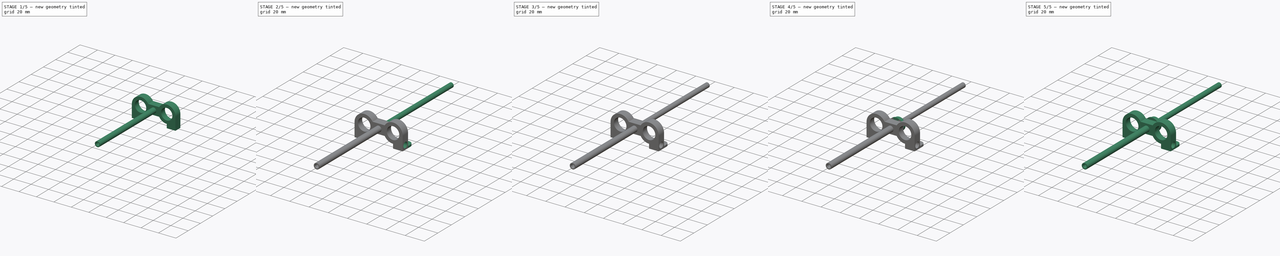
[diagram: build sequence overview — one tinted view per stage of 5, left to right]
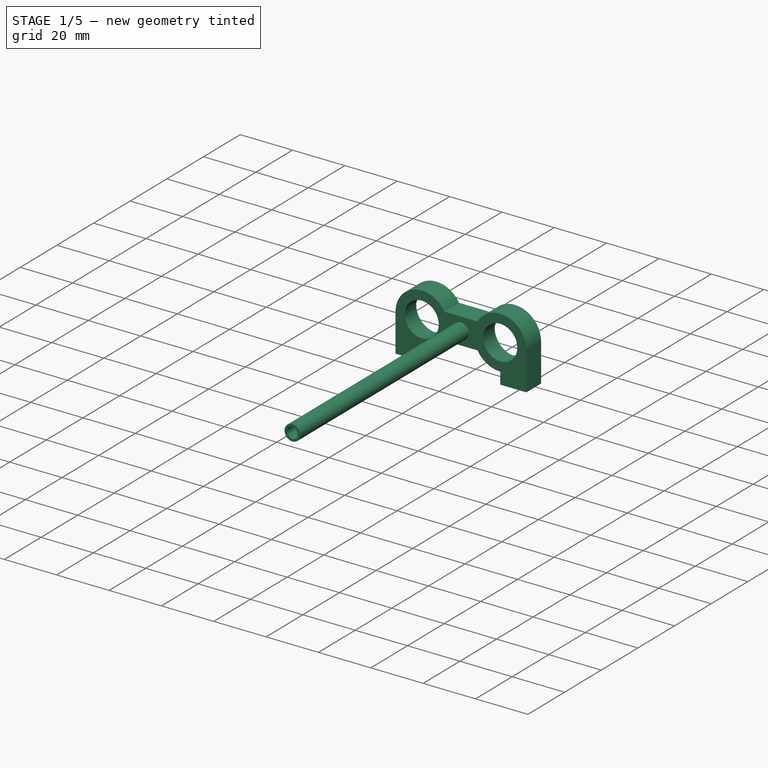
[diagram: stage 1 of 5 — iso view after this stage's code; geometry added in this stage tinted green]
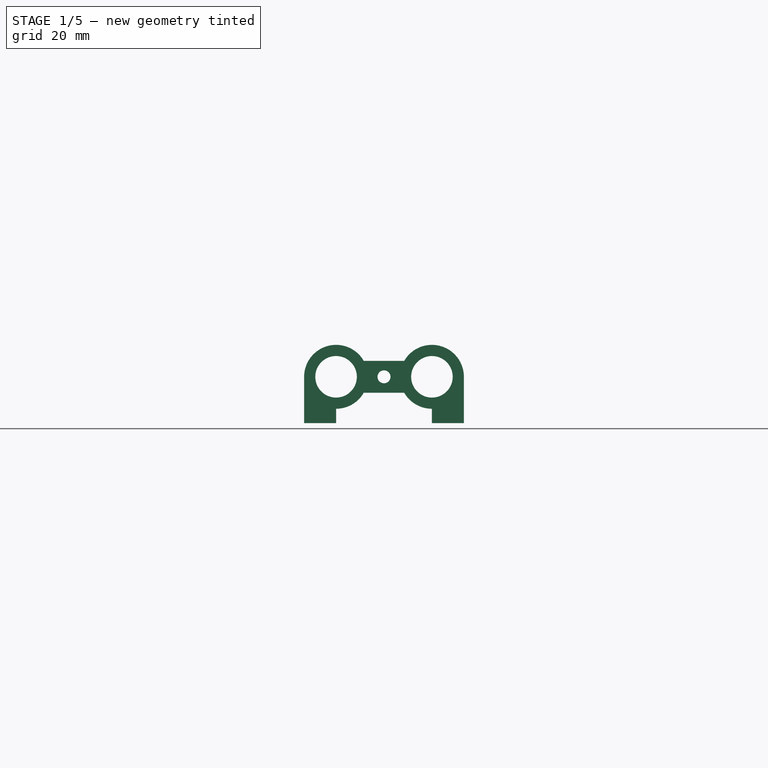
[diagram: stage 1 of 5 — front view after this stage's code; geometry added in this stage tinted green]
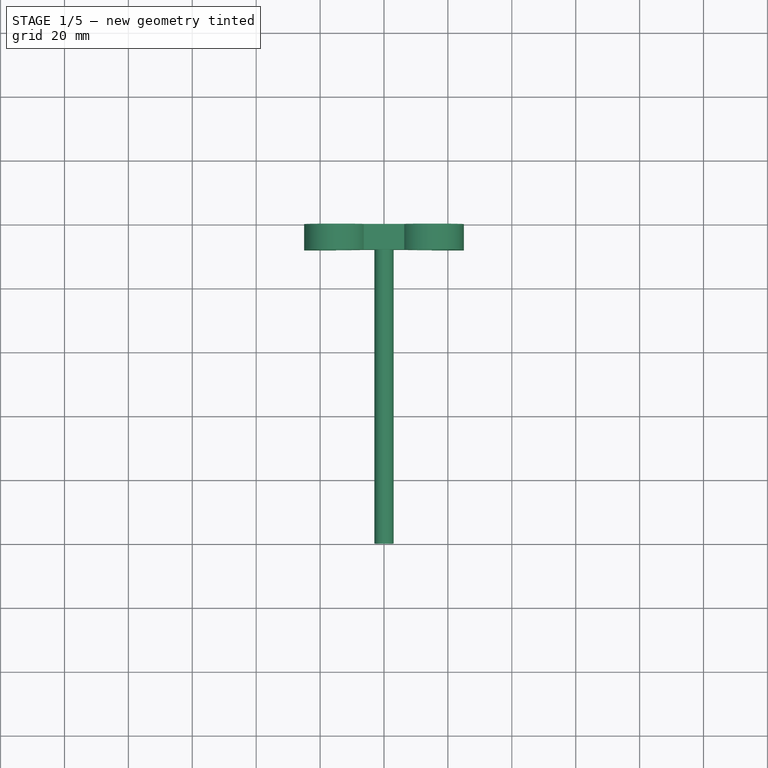
[diagram: stage 1 of 5 — top view after this stage's code; geometry added in this stage tinted green]
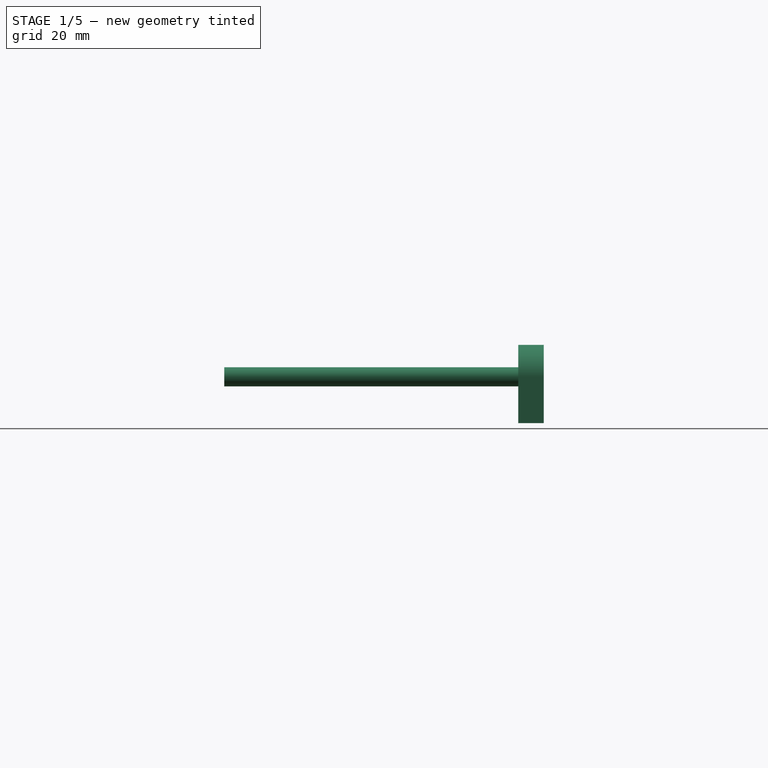
[diagram: stage 1 of 5 — right view after this stage's code; geometry added in this stage tinted green]
FCSTD DOCUMENT  (FreeCAD 0.19R23463 (Git))
Label: EL-axis
License: All rights reserved
LicenseURL: http://en.wikipedia.org/wiki/All_rights_reserved
objects: PartDesign::Body×15, PartDesign::FeatureBase×12, Sketcher::SketchObject×7, App::Part×5, PartDesign::Pad×3, Part::FeaturePython×2, PartDesign::Pocket×2, PartDesign::Revolution×1
note: 48 computed .brp shape members not serialized (recipe doc carries the construction recipe); baked Part::Feature solids carry a one-line shape summary decoded from their .brp

FEATURE [PartDesign::Body] Body010
  Group = -> [Clone009]
  Origin = -> Origin015
  Placement = pos=(0,90,0) rot=(0,0,1;0rad)
  Tip = -> Clone009
  expr: .Placement.Base.y = <<params>>.Constraints.length - 10mm
FEATURE [App::Part] Part001  label="screw_tap_left"
  Group = -> [Body001,Body003,Body007,Body008,Body010]
  Origin = -> Origin004
  Placement = pos=(-15,0,0) rot=(0,0,1;0rad)
  expr: .Placement.Base.x = -<<params>>.Constraints.entraxe / 2
FEATURE [Sketcher::SketchObject] Sketch002
  MapMode = 5
  Placement = pos=(0,0,0) rot=(1,0,0;1.5708rad)
  Support = -> [XZ_Plane016]
  expr: Constraints[4] = <<params>>.Constraints.entraxe
  expr: Constraints[2] = <<sk_ballb>>.Constraints.ext_radius * 2
  sketch-geometry (22):
    g0: Circle CenterX=-15 CenterY=0 CenterZ=0 NormalX=0 NormalY=0 NormalZ=1 AngleXU=0 Radius=6.5
    g1: Circle CenterX=15 CenterY=0 CenterZ=0 NormalX=0 NormalY=0 NormalZ=1 AngleXU=0 Radius=6.5
    g2: LineSegment StartX=-15 StartY=10 StartZ=0 EndX=-15 EndY=6.5 EndZ=0
    g3: LineSegment StartX=-15 StartY=-6.5 StartZ=0 EndX=-15 EndY=-14.5 EndZ=0
    g4: Circle CenterX=-15 CenterY=0 CenterZ=0 NormalX=0 NormalY=0 NormalZ=1 AngleXU=0 Radius=10
    g5: Circle CenterX=15 CenterY=0 CenterZ=0 NormalX=0 NormalY=0 NormalZ=1 AngleXU=0 Radius=10
    g6: LineSegment StartX=-6.33975 StartY=5 StartZ=0 EndX=6.33975 EndY=5 EndZ=0
    g7: LineSegment StartX=-6.33975 StartY=-5 StartZ=0 EndX=6.33975 EndY=-5 EndZ=0
    g8: LineSegment StartX=-25 StartY=0 StartZ=0 EndX=-25 EndY=-14.5 EndZ=0
    g9: LineSegment StartX=-25 StartY=-14.5 StartZ=0 EndX=-15 EndY=-14.5 EndZ=0
    g10: LineSegment StartX=15 StartY=-10 StartZ=0 EndX=15 EndY=-14.5 EndZ=0
    g11: LineSegment StartX=15 StartY=-14.5 StartZ=0 EndX=25 EndY=-14.5 EndZ=0
    g12: LineSegment StartX=25 StartY=-14.5 StartZ=0 EndX=25 EndY=0 EndZ=0
    g13: ArcOfCircle CenterX=-15 CenterY=0 CenterZ=0 NormalX=0 NormalY=0 NormalZ=1 AngleXU=0 Radius=10 StartAngle=0.523599 EndAngle=3.14159
    g14: ArcOfCircle CenterX=15 CenterY=0 CenterZ=0 NormalX=0 NormalY=0 NormalZ=1 AngleXU=0 Radius=10 StartAngle=0 EndAngle=2.61799
    g15: ArcOfCircle CenterX=15 CenterY=0 CenterZ=0 NormalX=0 NormalY=0 NormalZ=1 AngleXU=0 Radius=10 StartAngle=3.66519 EndAngle=4.71239
    g16: ArcOfCircle CenterX=-15 CenterY=0 CenterZ=0 NormalX=0 NormalY=0 NormalZ=1 AngleXU=0 Radius=10 StartAngle=4.71239 EndAngle=5.75959
    g17: LineSegment StartX=-15 StartY=-10 StartZ=0 EndX=-15 EndY=-14.5 EndZ=0
    g18: Circle CenterX=0 CenterY=0 CenterZ=0 NormalX=0 NormalY=0 NormalZ=1 AngleXU=0 Radius=3
    g19: LineSegment StartX=-5 StartY=0 StartZ=0 EndX=-3 EndY=0 EndZ=0
    g20: LineSegment StartX=0 StartY=-3 StartZ=0 EndX=0 EndY=-5 EndZ=0
    g21: LineSegment StartX=0 StartY=5 StartZ=0 EndX=0 EndY=3 EndZ=0
  constraints (66):
    c: PointOnObject(g0,g-1)
    c: Equal(g0,g1)
    c: Diameter(g1) = 13
    c: Symmetric(g0,g1,g-2)
    c: DistanceX(g0,g1) = 30
    c: PointOnObject(g2,g0)
    c: Vertical(g2)
    c: PointOnObject(g3,g0)
    c: Vertical(g3)
    c: DistanceY(g2,g2) = 3.5
    c: DistanceY(g3,g3) = 8
    c: Coincident(g4,g0)
    c: Coincident(g5,g1)
    c: PointOnObject(g2,g4)
    c: Equal(g5,g4)
    c: PointOnObject(g6,g4)
    c: PointOnObject(g6,g5)
    c: Horizontal(g6)
    c: PointOnObject(g7,g4)
    c: PointOnObject(g7,g5)
    c: Horizontal(g7)
    c: Vertical(g8)
    c: Coincident(g9,g8)
    c: Coincident(g9,g3)
    c: Vertical(g10)
    c: Coincident(g11,g10)
    c: Horizontal(g11)
    c: Coincident(g12,g11)
    c: Vertical(g12)
    c: Horizontal(g9)
    c: PointOnObject(g8,g-1)
    c: PointOnObject(g12,g-1)
    c: Horizontal(g9,g10)
    c: Coincident(g13,g0)
    c: Coincident(g13,g8)
    c: Coincident(g13,g6)
    c: Coincident(g14,g1)
    c: Coincident(g14,g6)
    c: Coincident(g14,g12)
    c: Coincident(g15,g1)
    c: Coincident(g15,g10)
    c: Coincident(g15,g7)
    c: Coincident(g16,g0)
    c: Coincident(g16,g7)
    c: PointOnObject(g16,g3)
    c: Coincident(g17,g16)
    c: Coincident(g17,g9)
    c: Vertical(g10,g1)
    c: Vertical(g16,g0)
    c: Vertical(g2,g0)
    c: Coincident(g18,g-1)
    c: Diameter(g18) = 6
    c: PointOnObject(g19,g4)
    c: PointOnObject(g19,g18)
    c: PointOnObject(g20,g18)
    c: PointOnObject(g20,g7)
    c: Vertical(g20)
    c: Horizontal(g19)
    c: PointOnObject(g19,g-1)
    c: PointOnObject(g20,g-2)
    c: Equal(g19,g20)
    c: PointOnObject(g21,g6)
    c: PointOnObject(g21,g18)
    c: Vertical(g21)
    c: PointOnObject(g21,g-2)
    c: Equal(g19,g21)
FEATURE [PartDesign::Pad] Pad
  Direction = (1,1,1)
  Length = 8
  Length2 = 100
  Placement = pos=(0,0,0) rot=(1,0,0;1.5708rad)
  Profile = -> Sketch002
  Type = 0
FEATURE [Sketcher::SketchObject] Sketch003
  ExternalGeometry = -> [Pad]
  MapMode = 5
  Placement = pos=(0,0,0) rot=(-1,0,0;1.5708rad)
  Support = -> [Pad]
  expr: Constraints[3] = <<sk_ballb>>.Constraints.ext_radius2 + 0.2mm
  sketch-geometry (2):
    g0: Circle CenterX=-15 CenterY=0 CenterZ=0 NormalX=0 NormalY=0 NormalZ=1 AngleXU=0 Radius=7.7
    g1: Circle CenterX=15 CenterY=0 CenterZ=0 NormalX=0 NormalY=0 NormalZ=1 AngleXU=0 Radius=7.7
  constraints (4):
    c: Coincident(g0,g-3)
    c: Coincident(g1,g-4)
    c: Equal(g0,g1)
    c: Radius(g1) = 7.7
FEATURE [PartDesign::Pocket] Pocket
  BaseFeature = -> Pad
  Length = 2
  Length2 = 100
  Placement = pos=(0,0,0) rot=(1,0,0;1.5708rad)
  Profile = -> Sketch003
  Type = 0
FEATURE [PartDesign::Body] Body011  label="bd_bb_bracket"
  Group = -> [Sketch002,Pad,Sketch003,Pocket,Sketch004,Pocket001,Sketch005,Pad001]
  Origin = -> Origin016
  Tip = -> Pad001
FEATURE [App::Part] Part  label="free_bb_bracket"
  Group = -> [Body011,Body012]
  Origin = -> Origin
  Placement = pos=(0,96,0) rot=(0,0,1;0rad)
  expr: .Placement.Base.y = <<params>>.Constraints.length - 4mm
FEATURE [Sketcher::SketchObject] Sketch006
  MapMode = 5
  Placement = pos=(0,0,0) rot=(1,0,0;1.5708rad)
  Support = -> [XZ_Plane018]
  sketch-geometry (2):
    g0: Circle CenterX=0 CenterY=0 CenterZ=0 NormalX=0 NormalY=0 NormalZ=1 AngleXU=0 Radius=2.025
    g1: Circle CenterX=0 CenterY=0 CenterZ=0 NormalX=0 NormalY=0 NormalZ=1 AngleXU=0 Radius=3
  constraints (4):
    c: Coincident(g0,g-1)
    c: Coincident(g1,g0)
    c: Diameter(g1) = 6
    c: Diameter(g0) = 4.05
FEATURE [PartDesign::Pad] Pad002
  Direction = (1,1,1)
  Length = 100
  Length2 = 100
  Placement = pos=(0,0,0) rot=(1,0,0;1.5708rad)
  Profile = -> Sketch006
  Type = 0
FEATURE [PartDesign::Body] Body013  label="pipe_6"
  Group = -> [Sketch006,Pad002]
  Origin = -> Origin018
  Tip = -> Pad002
FEATURE [App::Part] Part003  label="parts"
  Group = -> [Body,Nut,ScrewTap,Body013]
  Origin = -> Origin009
FEATURE [PartDesign::FeatureBase] Clone011
  BaseFeature = -> Body013
FEATURE [PartDesign::Body] Body014
  Group = -> [Clone011]
  Origin = -> Origin020
  Placement = pos=(0,156,0) rot=(0,0,1;0rad)
  Tip = -> Clone011
FEATURE [App::Part] Part004  label="carriage"
  Group = -> [Body014]
  Origin = -> Origin019
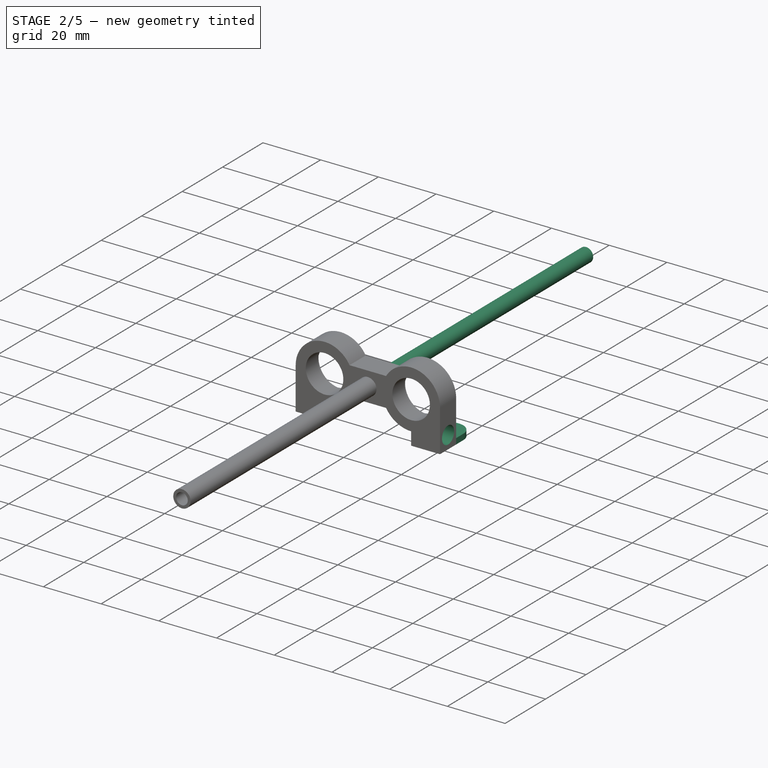
[diagram: stage 2 of 5 — iso view after this stage's code; geometry added in this stage tinted green]
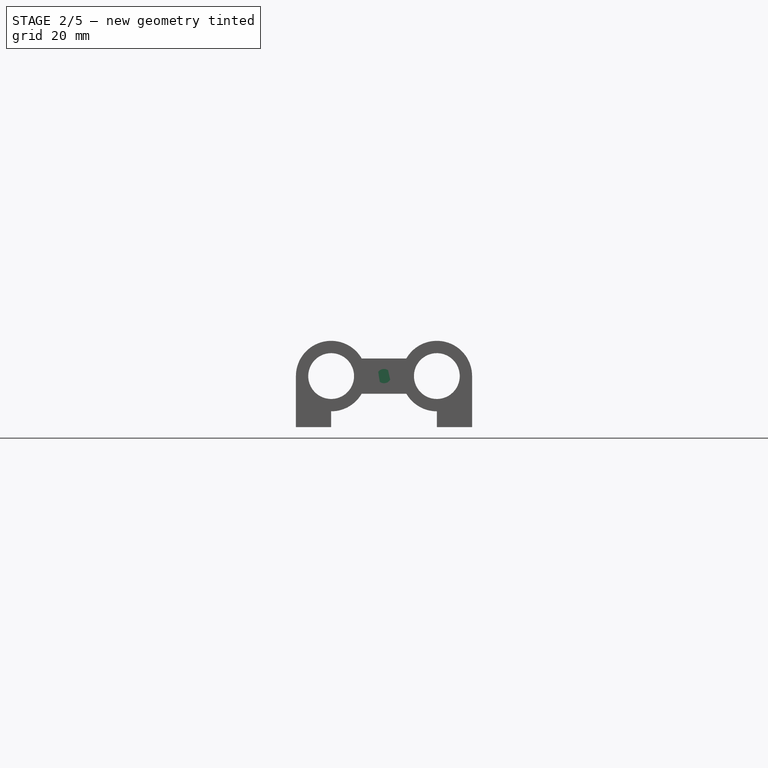
[diagram: stage 2 of 5 — front view after this stage's code; geometry added in this stage tinted green]
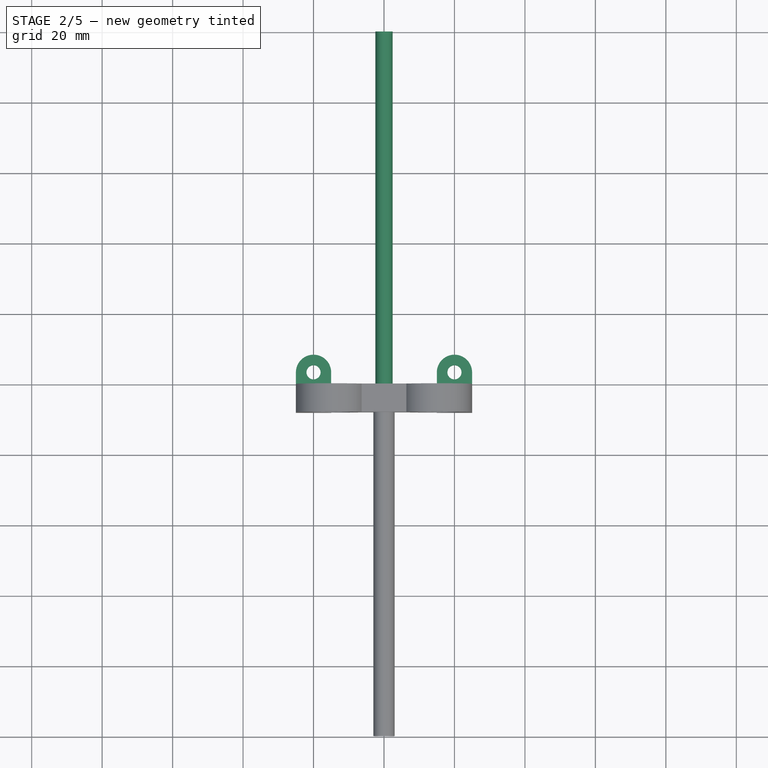
[diagram: stage 2 of 5 — top view after this stage's code; geometry added in this stage tinted green]
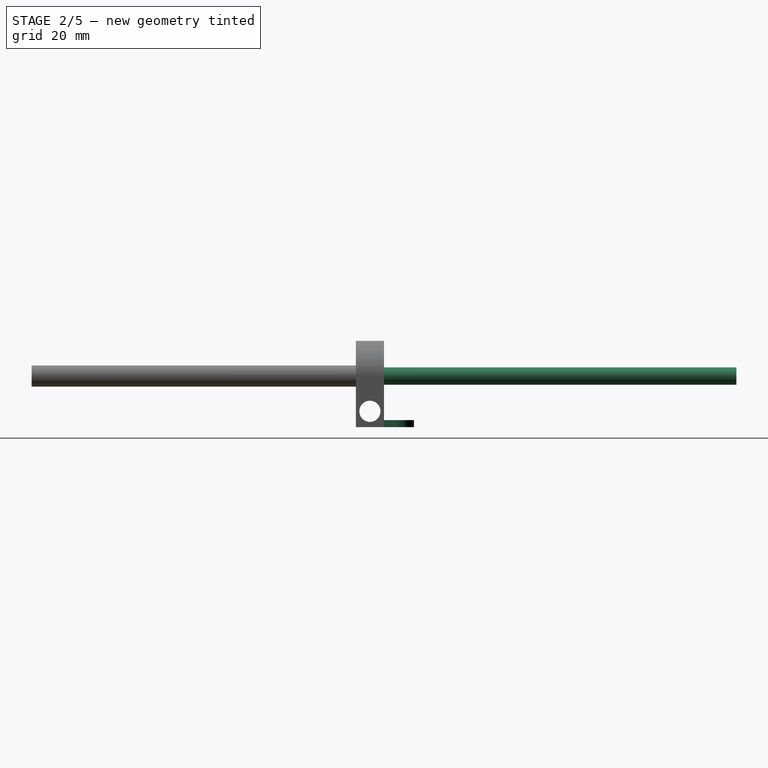
[diagram: stage 2 of 5 — right view after this stage's code; geometry added in this stage tinted green]
FEATURE [Part::FeaturePython] ScrewTap  label="M6x100.0-ScrewTap"  # Fasteners workbench fastener (typed FeaturePython)
  Placement = pos=(0,0,0) rot=(1,0,0;1.5708rad)
  diameter = 8
  invert = false
  length = 100
  matchOuter = false
  offset = 0
  thread = false
  expr: length = <<params>>.Constraints.length
FEATURE [Sketcher::SketchObject] Sketch004
  ExternalGeometry = -> [Pocket]
  MapMode = 5
  Placement = pos=(0,0,0) rot=(0.57735,0.57735,0.57735;2.0944rad)
  Support = -> [YZ_Plane016]
  sketch-geometry (1):
    g0: Circle CenterX=-4 CenterY=-10 CenterZ=0 NormalX=0 NormalY=0 NormalZ=1 AngleXU=0 Radius=3
  constraints (2):
    c: Diameter(g0) = 6
    c: Symmetric(g-4,g-3,g0)
FEATURE [PartDesign::Pocket] Pocket001
  BaseFeature = -> Pocket
  Length = 62
  Length2 = 100
  Midplane = true
  Placement = pos=(0,0,0) rot=(1,0,0;1.5708rad)
  Profile = -> Sketch004
  Type = 0
FEATURE [PartDesign::FeatureBase] Clone010
  BaseFeature = -> ScrewTap
  Placement = pos=(0,0,0) rot=(1,0,0;1.5708rad)
FEATURE [PartDesign::Body] Body012  label="bd_rear_transverse_rod"
  Group = -> [Clone010]
  Origin = -> Origin017
  Placement = pos=(48,-4,-10) rot=(0,0,1;1.5708rad)
  Tip = -> Clone010
FEATURE [Sketcher::SketchObject] Sketch005
  AttachmentOffset = pos=(0,0,-14.5) rot=(0,0,1;0rad)
  ExternalGeometry = -> [Pocket001]
  MapMode = 5
  Placement = pos=(0,0,-14.5) rot=(0,0,1;0rad)
  Support = -> [XY_Plane016]
  sketch-geometry (13):
    g0: Circle CenterX=-20 CenterY=3.5 CenterZ=0 NormalX=0 NormalY=0 NormalZ=1 AngleXU=0 Radius=3.5
    g1: Circle CenterX=20 CenterY=3.5 CenterZ=0 NormalX=0 NormalY=0 NormalZ=1 AngleXU=0 Radius=3.5
    g2: Circle CenterX=-20 CenterY=3.5 CenterZ=0 NormalX=0 NormalY=0 NormalZ=1 AngleXU=0 Radius=2
    g3: Circle CenterX=20 CenterY=3.5 CenterZ=0 NormalX=0 NormalY=0 NormalZ=1 AngleXU=0 Radius=2
    g4: LineSegment StartX=-25 StartY=0 StartZ=0 EndX=-15 EndY=0 EndZ=0
    g5: LineSegment StartX=15 StartY=0 StartZ=0 EndX=25 EndY=-2.25e-14 EndZ=0
    g6: LineSegment StartX=15 StartY=0 StartZ=0 EndX=15 EndY=3.5 EndZ=0
    g7: LineSegment StartX=25 StartY=-2.25e-14 StartZ=0 EndX=25 EndY=3.5 EndZ=0
    g8: LineSegment StartX=-15 StartY=0 StartZ=0 EndX=-15 EndY=3.5 EndZ=0
    g9: LineSegment StartX=-25 StartY=0 StartZ=0 EndX=-25 EndY=3.5 EndZ=0
    g10: ArcOfCircle CenterX=-20 CenterY=3.5 CenterZ=0 NormalX=0 NormalY=0 NormalZ=1 AngleXU=0 Radius=5 StartAngle=0 EndAngle=3.14159
    g11: ArcOfCircle CenterX=20 CenterY=3.5 CenterZ=0 NormalX=0 NormalY=0 NormalZ=1 AngleXU=0 Radius=5 StartAngle=0 EndAngle=3.14159
    g12: LineSegment StartX=20 StartY=3.5 StartZ=0 EndX=20 EndY=-2.26e-14 EndZ=0
  constraints (30):
    c: Diameter(g0) = 7
    c: Tangent(g0,g-1)
    c: Equal(g1,g0)
    c: Symmetric(g0,g1,g-2)
    c: Coincident(g2,g0)
    c: Coincident(g3,g1)
    c: Equal(g2,g3)
    c: Diameter(g2) = 4
    c: PointOnObject(g4,g-1)
    c: PointOnObject(g4,g-1)
    c: PointOnObject(g5,g-1)
    c: Coincident(g6,g5)
    c: Vertical(g6)
    c: Coincident(g7,g5)
    c: Vertical(g7)
    c: Coincident(g8,g4)
    c: Vertical(g8)
    c: Coincident(g9,g4)
    c: Vertical(g9)
    c: Coincident(g10,g2)
    c: Coincident(g11,g3)
    c: Equal(g10,g11)
    c: Tangent(g10,g8) = -1.5708
    c: Tangent(g10,g9) = 1.5708
    c: Tangent(g11,g6) = 1.5708
    c: Tangent(g11,g7) = -1.5708
    c: Coincident(g12,g3)
    c: Vertical(g12)
    c: Symmetric(g-3,g-3,g12)
    c: Coincident(g5,g-3)
FEATURE [PartDesign::Pad] Pad001
  BaseFeature = -> Pocket001
  Direction = (1,1,1)
  Length = 2
  Length2 = 100
  Placement = pos=(0,0,0) rot=(1,0,0;1.5708rad)
  Profile = -> Sketch005
  Type = 0
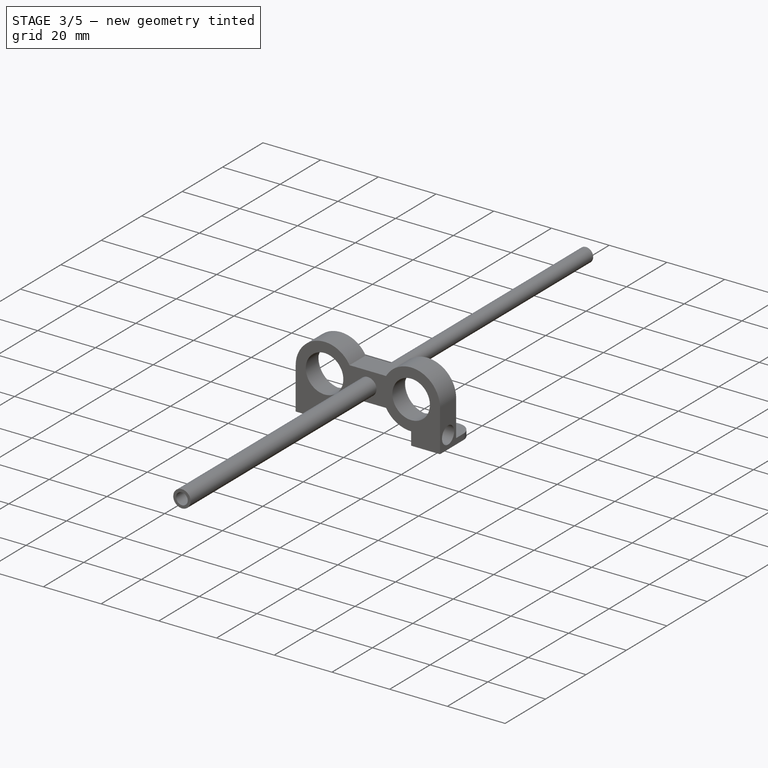
[diagram: stage 3 of 5 — iso view after this stage's code; geometry added in this stage tinted green]
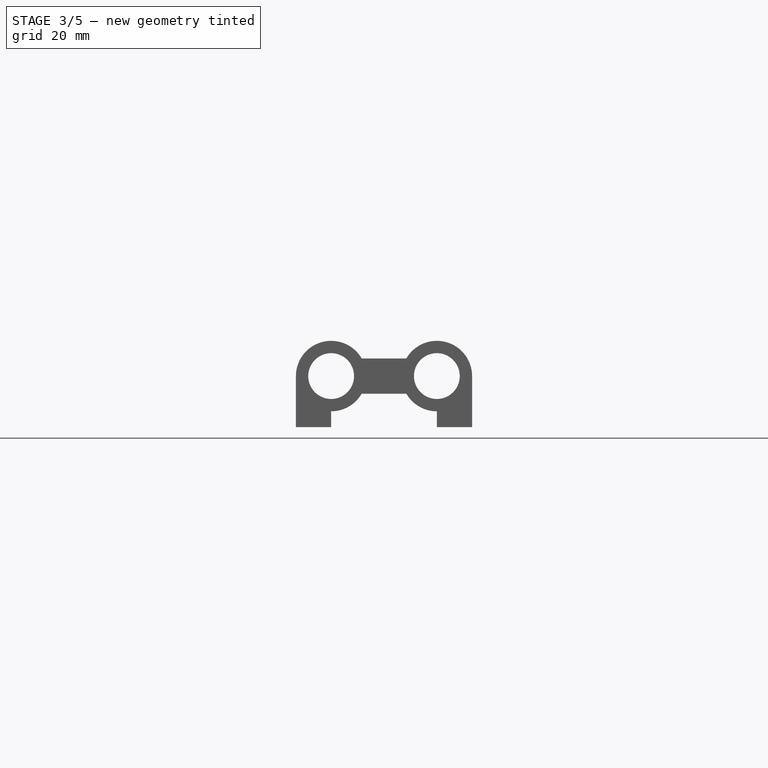
[diagram: stage 3 of 5 — front view after this stage's code; geometry added in this stage tinted green]
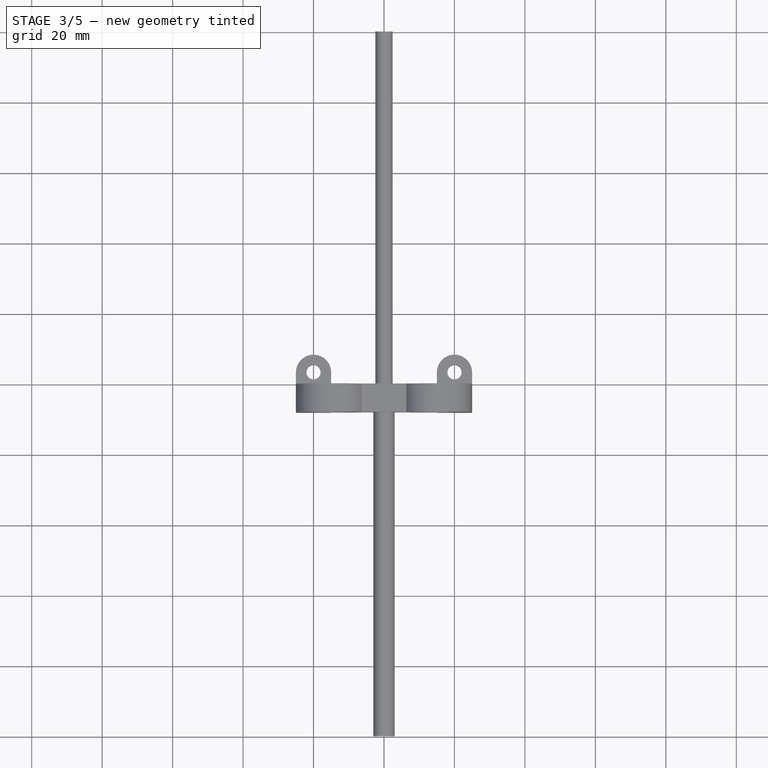
[diagram: stage 3 of 5 — top view after this stage's code; geometry added in this stage tinted green]
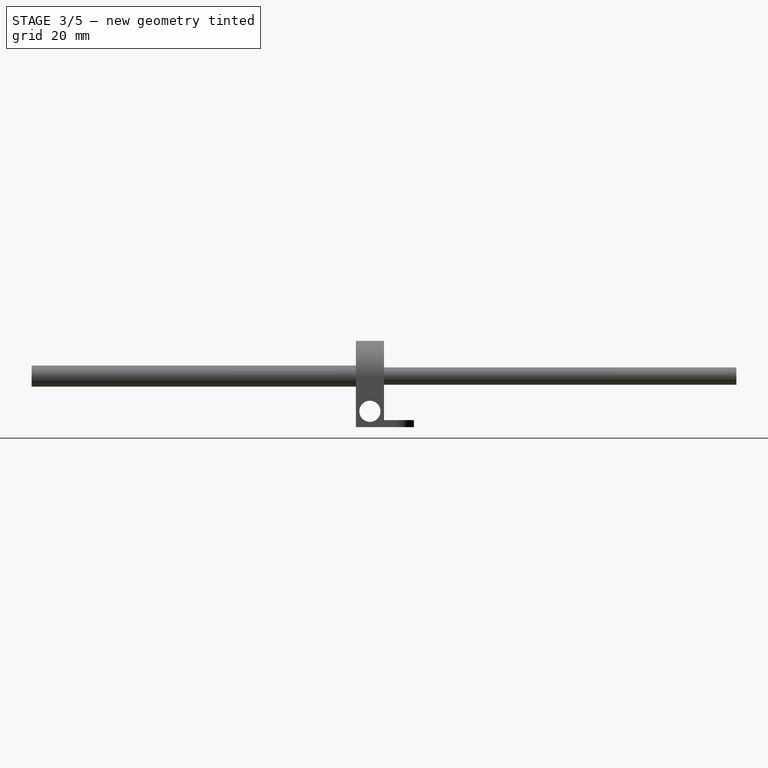
[diagram: stage 3 of 5 — right view after this stage's code; geometry added in this stage tinted green]
FEATURE [Part::FeaturePython] Nut  label="M6-Nut"  # Fasteners workbench fastener (typed FeaturePython)
  Placement = pos=(0,0,0) rot=(1,0,0;1.5708rad)
  diameter = 8
  invert = false
  matchOuter = false
  offset = 0
  thread = false
  type = 4
FEATURE [PartDesign::Body] Body007
  Group = -> [Clone006]
  Origin = -> Origin012
  Placement = pos=(0,100,0) rot=(0,0,1;0rad)
  Tip = -> Clone006
  expr: .Placement.Base.y = <<params>>.Constraints.length
FEATURE [PartDesign::FeatureBase] Clone007
  BaseFeature = -> ScrewTap
  Placement = pos=(0,0,0) rot=(1,0,0;1.5708rad)
FEATURE [PartDesign::Body] Body008
  Group = -> [Clone007]
  Origin = -> Origin013
  Tip = -> Clone007
FEATURE [PartDesign::FeatureBase] Clone008
  BaseFeature = -> Nut
  Placement = pos=(0,0,0) rot=(1,0,0;1.5708rad)
FEATURE [PartDesign::Body] Body009
  Group = -> [Clone008]
  Origin = -> Origin014
  Placement = pos=(0,90,0) rot=(0,0,1;0rad)
  Tip = -> Clone008
  expr: .Placement.Base.y = <<params>>.Constraints.length - 10mm
FEATURE [App::Part] Part002  label="screw_tap_right"
  Group = -> [Body002,Body004,Body005,Body006,Body009]
  Origin = -> Origin005
  Placement = pos=(15,0,0) rot=(0,0,1;0rad)
  expr: .Placement.Base.x = <<params>>.Constraints.entraxe / 2
FEATURE [PartDesign::FeatureBase] Clone009
  BaseFeature = -> Nut
  Placement = pos=(0,0,0) rot=(1,0,0;1.5708rad)
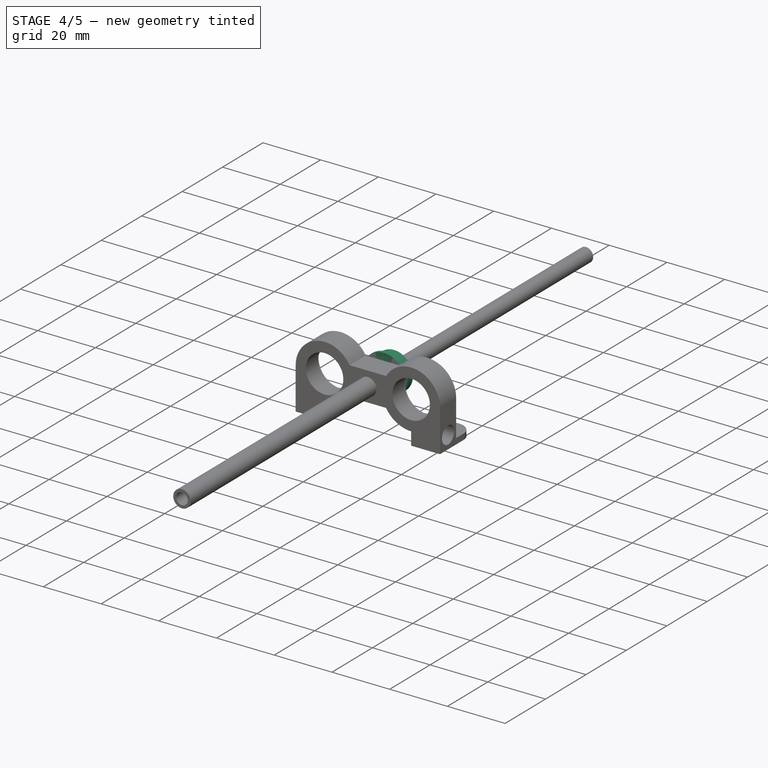
[diagram: stage 4 of 5 — iso view after this stage's code; geometry added in this stage tinted green]
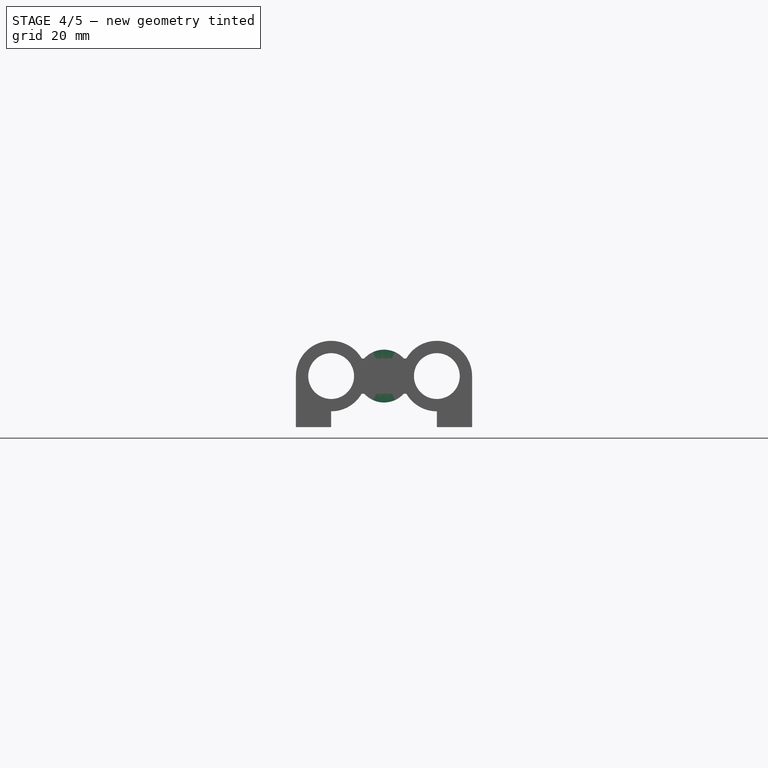
[diagram: stage 4 of 5 — front view after this stage's code; geometry added in this stage tinted green]
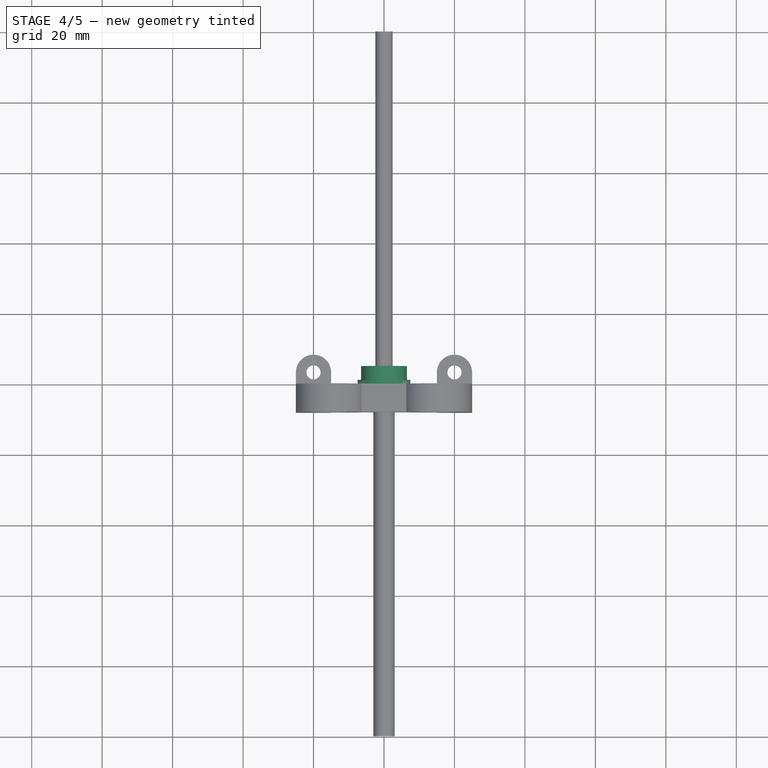
[diagram: stage 4 of 5 — top view after this stage's code; geometry added in this stage tinted green]
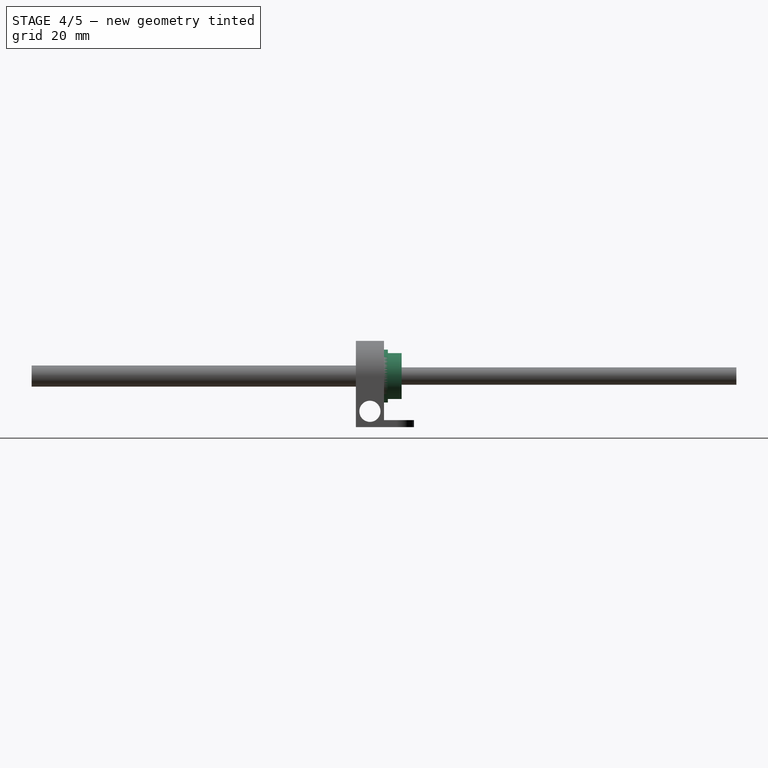
[diagram: stage 4 of 5 — right view after this stage's code; geometry added in this stage tinted green]
FEATURE [Sketcher::SketchObject] Sketch  label="params"
  Placement = pos=(0,0,0) rot=(-1,0,0;4.71239rad)
  sketch-geometry (9):
    g0: Circle CenterX=-15 CenterY=0 CenterZ=0 NormalX=0 NormalY=0 NormalZ=1 AngleXU=0 Radius=3
    g1: Circle CenterX=15 CenterY=0 CenterZ=0 NormalX=0 NormalY=0 NormalZ=1 AngleXU=0 Radius=3
    g2: Circle CenterX=-15 CenterY=0 CenterZ=0 NormalX=0 NormalY=0 NormalZ=1 AngleXU=0 Radius=10
    g3: Circle CenterX=15 CenterY=0 CenterZ=0 NormalX=0 NormalY=0 NormalZ=1 AngleXU=0 Radius=10
    g4: Circle CenterX=0 CenterY=13.2288 CenterZ=0 NormalX=0 NormalY=0 NormalZ=1 AngleXU=0 Radius=10
    g5: LineSegment StartX=42.8285 StartY=3 StartZ=0 EndX=142.828 EndY=3 EndZ=0
    g6: LineSegment StartX=142.828 StartY=3 StartZ=0 EndX=142.828 EndY=-3 EndZ=0
    g7: LineSegment StartX=142.828 StartY=-3 StartZ=0 EndX=42.8285 EndY=-3 EndZ=0
    g8: LineSegment StartX=42.8285 StartY=-3 StartZ=0 EndX=42.8285 EndY=3 EndZ=0
  constraints (23):
    c: PointOnObject(g0,g-1)
    c: Symmetric(g0,g1,g-2)
    c: Equal(g0,g1)
    c: Diameter(g1) = 6
    c: DistanceX(g0,g1) = 30  'entraxe'
    c: Coincident(g2,g0)
    c: Coincident(g3,g1)
    c: PointOnObject(g4,g-2)
    c: Equal(g4,g2)
    c: Equal(g2,g3)
    c: Tangent(g2,g4)
    c: Diameter(g3) = 20
    c: Coincident(g5,g6)
    c: Coincident(g6,g7)
    c: Coincident(g7,g8)
    c: Coincident(g8,g5)
    c: Horizontal(g5)
    c: Horizontal(g7)
    c: Vertical(g6)
    c: Vertical(g8)
    c: Tangent(g5,g1)
    c: Tangent(g7,g1)
    c: DistanceX(g7,g7) = 100  'length'
FEATURE [Sketcher::SketchObject] Sketch001  label="sk_ballb"
  MapMode = 5
  Support = -> [XY_Plane001]
  sketch-geometry (6):
    g0: LineSegment StartX=-3 StartY=0 StartZ=0 EndX=-7.5 EndY=0 EndZ=0
    g1: LineSegment StartX=-7.5 StartY=0 StartZ=0 EndX=-7.5 EndY=1.09 EndZ=0
    g2: LineSegment StartX=-7.5 StartY=1.09 StartZ=0 EndX=-6.5 EndY=1.09 EndZ=0
    g3: LineSegment StartX=-6.5 StartY=1.09 StartZ=0 EndX=-6.5 EndY=5 EndZ=0
    g4: LineSegment StartX=-6.5 StartY=5 StartZ=0 EndX=-3 EndY=5 EndZ=0
    g5: LineSegment StartX=-3 StartY=5 StartZ=0 EndX=-3 EndY=0 EndZ=0
  constraints (18):
    c: PointOnObject(g0,g-1)
    c: PointOnObject(g0,g-1)
    c: Coincident(g1,g0)
    c: Vertical(g1)
    c: Coincident(g2,g1)
    c: Horizontal(g2)
    c: Coincident(g3,g2)
    c: Vertical(g3)
    c: Coincident(g4,g3)
    c: Horizontal(g4)
    c: Coincident(g5,g4)
    c: Coincident(g5,g0)
    c: Vertical(g5)
    c: DistanceX(g0,g-1) = 3
    c: DistanceX(g2,g-1) = 6.5  'ext_radius'
    c: DistanceX(g0,g-1) = 7.5  'ext_radius2'
    c: DistanceY(g-1,g4) = 5  'ext_thick'
    c: DistanceY(g1,g1) = 1.09  'ext_thick2'
FEATURE [PartDesign::Revolution] Revolution
  Angle = 360
  Axis = (0,1,0)
  Base = (0,0,0)
  Profile = -> Sketch001
  ReferenceAxis = -> Sketch001 [V_Axis]
FEATURE [PartDesign::Body] Body004
  Group = -> [Clone003]
  Origin = -> Origin007
  Placement = pos=(0,95,0) rot=(0,0,1;3.14159rad)
  Tip = -> Clone003
  expr: .Placement.Base.y = <<params>>.Constraints.length - 5mm
FEATURE [PartDesign::FeatureBase] Clone004
  BaseFeature = -> Nut
  Placement = pos=(0,0,0) rot=(1,0,0;1.5708rad)
FEATURE [PartDesign::Body] Body005
  Group = -> [Clone004]
  Origin = -> Origin010
  Placement = pos=(0,100,0) rot=(0,0,1;0rad)
  Tip = -> Clone004
  expr: .Placement.Base.y = <<params>>.Constraints.length
FEATURE [PartDesign::FeatureBase] Clone005
  BaseFeature = -> ScrewTap
  Placement = pos=(0,0,0) rot=(1,0,0;1.5708rad)
FEATURE [PartDesign::Body] Body006
  Group = -> [Clone005]
  Origin = -> Origin011
  Tip = -> Clone005
FEATURE [PartDesign::FeatureBase] Clone006
  BaseFeature = -> Nut
  Placement = pos=(0,0,0) rot=(1,0,0;1.5708rad)
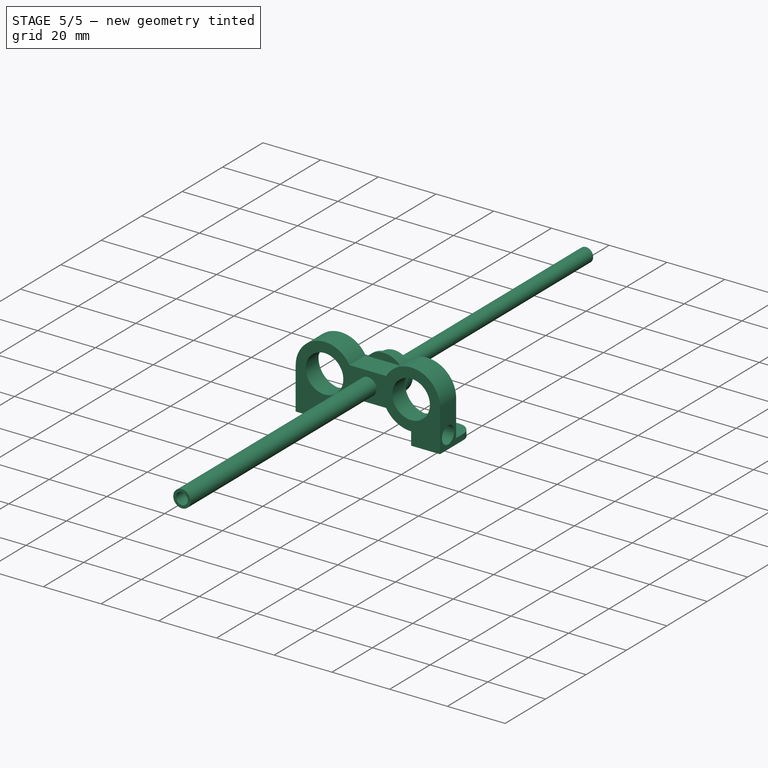
[diagram: stage 5 of 5 — iso view after this stage's code; geometry added in this stage tinted green]
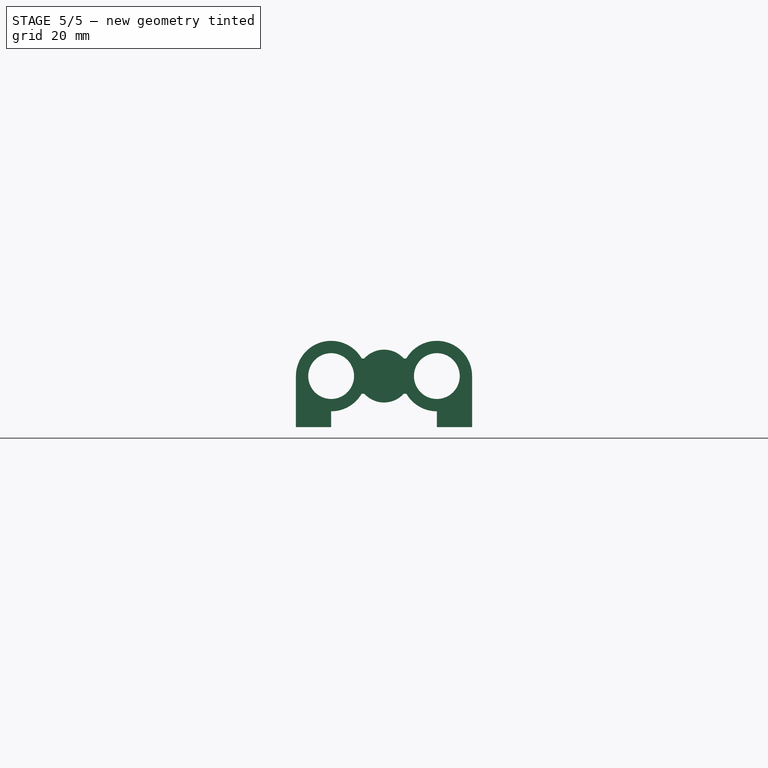
[diagram: stage 5 of 5 — front view after this stage's code; geometry added in this stage tinted green]
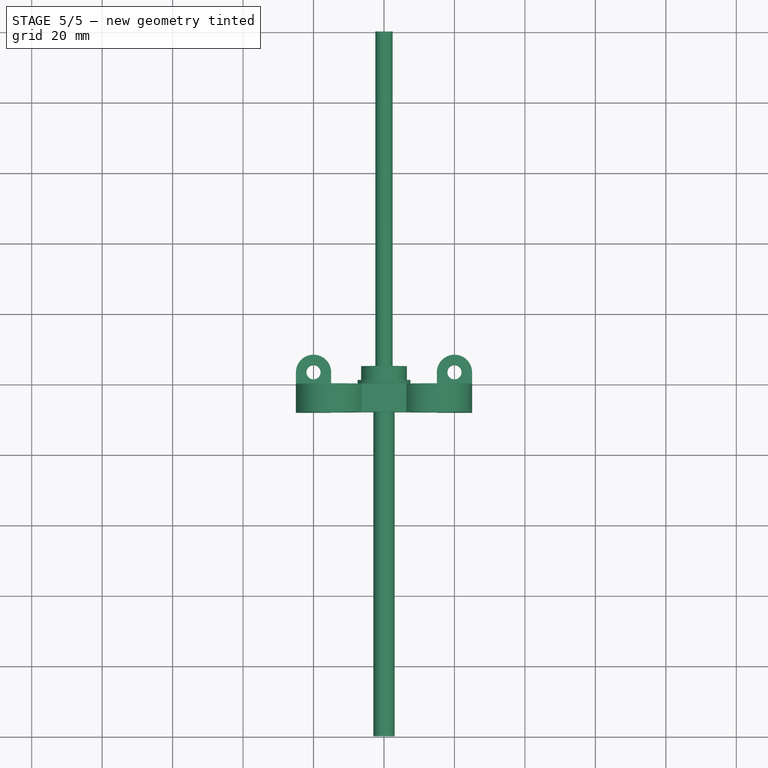
[diagram: stage 5 of 5 — top view after this stage's code; geometry added in this stage tinted green]
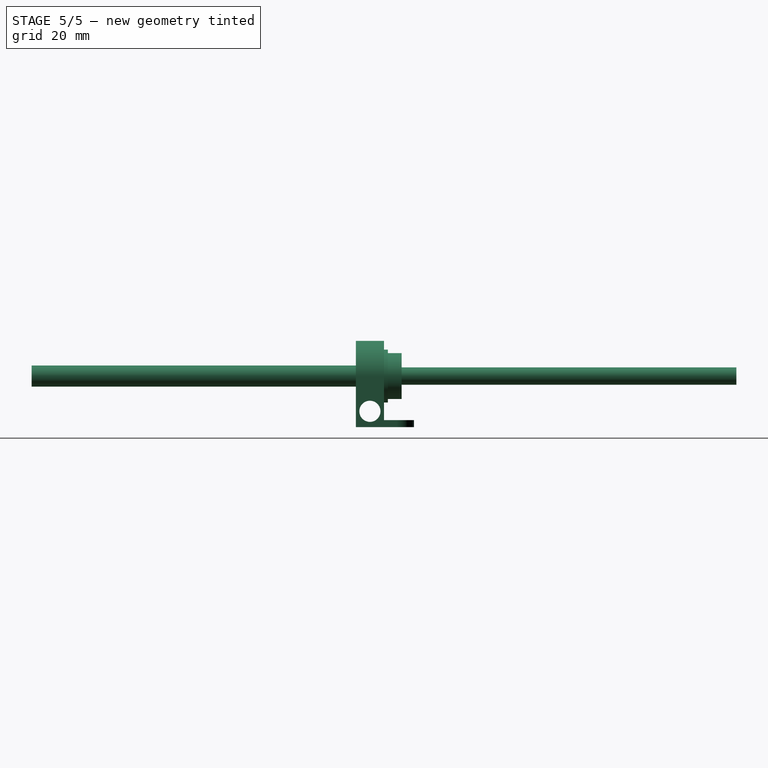
[diagram: stage 5 of 5 — right view after this stage's code; geometry added in this stage tinted green]
FEATURE [PartDesign::Body] Body  label="bd_ball_bearing_6x13"
  Group = -> [Sketch001,Revolution]
  Origin = -> Origin001
  Tip = -> Revolution
FEATURE [PartDesign::FeatureBase] Clone
  BaseFeature = -> Body
FEATURE [PartDesign::Body] Body001
  Group = -> [Clone]
  Origin = -> Origin002
  Tip = -> Clone
FEATURE [PartDesign::FeatureBase] Clone001
  BaseFeature = -> Body
FEATURE [PartDesign::Body] Body002
  Group = -> [Clone001]
  Origin = -> Origin003
  Tip = -> Clone001
FEATURE [PartDesign::FeatureBase] Clone002
  BaseFeature = -> Body
FEATURE [PartDesign::Body] Body003
  Group = -> [Clone002]
  Origin = -> Origin006
  Placement = pos=(0,95,0) rot=(0,0,1;3.14159rad)
  Tip = -> Clone002
  expr: .Placement.Base.y = <<params>>.Constraints.length - 5mm
FEATURE [PartDesign::FeatureBase] Clone003
  BaseFeature = -> Body
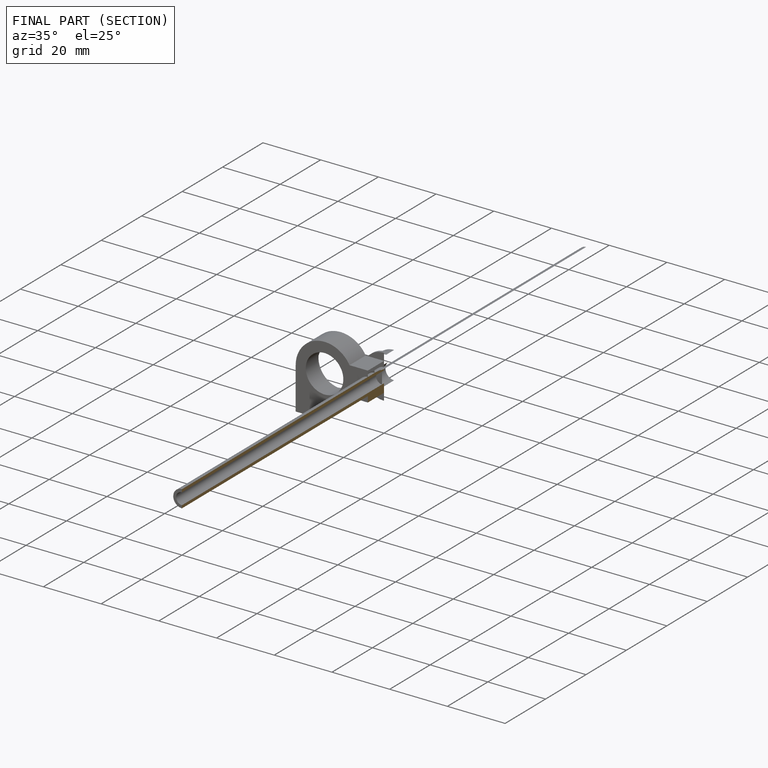
[diagram: finished part — half-section view (interior)]
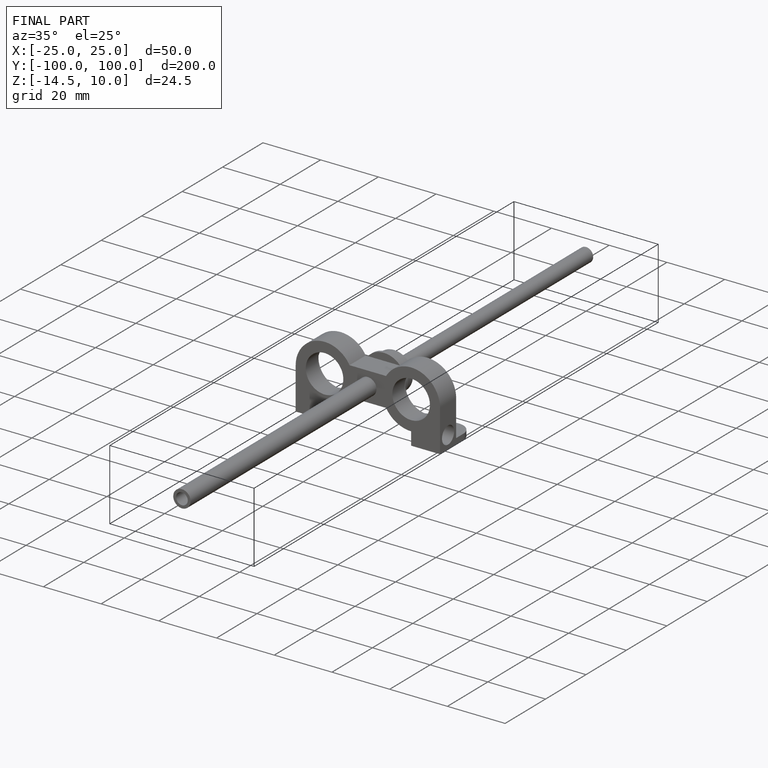
[diagram: finished part — iso view with bounding-box wireframe]
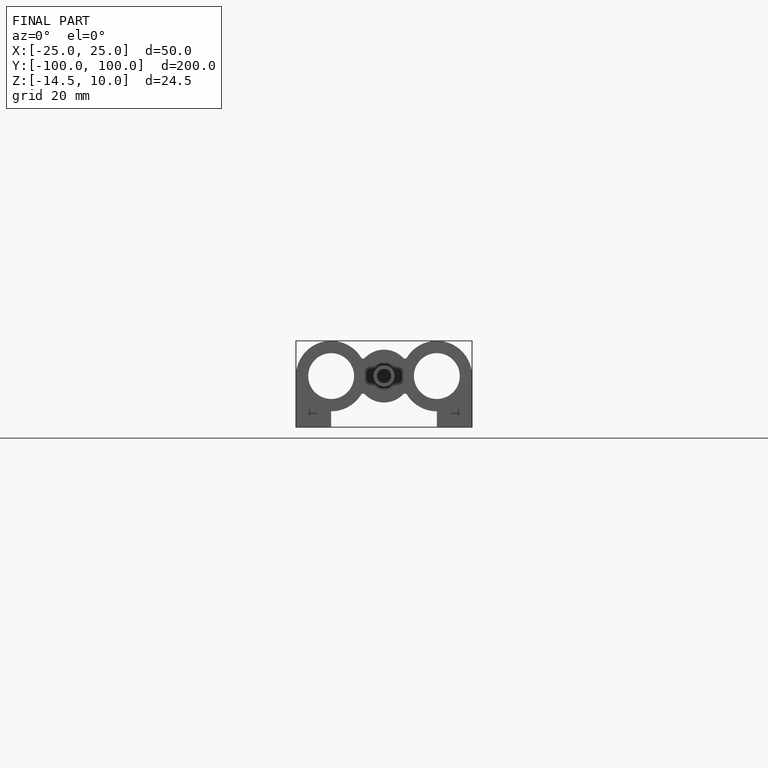
[diagram: finished part — front view with bounding-box wireframe]
